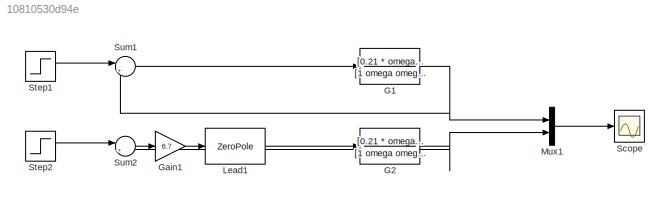
MODEL slx_10810530d94e
KIND model
CONFIG AbsTol = auto
CONFIG EnableMultiTasking = off
CONFIG FixedStep = auto
CONFIG MaxStep = auto
CONFIG MinStep = auto
CONFIG RelTol = 1e-5
CONFIG SampleTimeConstraint = Unconstrained
CONFIG SolverName = VariableStepAuto
CONFIG StartTime = 0.0
CONFIG StopTime = 10.0
BLOCK [TransferFcn] G1
  Denominator = [1 omega omega^2 0 0]
  Numerator = [0.21 * omega^2]
BLOCK [TransferFcn] G2
  Denominator = [1 omega omega^2 0 0]
  Numerator = [0.21 * omega^2]
BLOCK [Gain] Gain1
  Gain = 6.7
BLOCK [ZeroPole] Lead1
  ContinuousStateAttributes = 'Lead'
  Poles = [-1.8]
  Zeros = [-0.015]
BLOCK [Mux] Mux1
  DisplayOption = bar
  Inputs = 2
BLOCK [Scope] Scope
  Floating = off
  NumInputPorts = 1
  ScopeSpecificationString = Simulink.scopes.TimeScopeBlockCfg('CurrentConfiguration', extmgr.ConfigurationSet(extmgr.Configuration('Core','General UI',true),extmgr.Configuration('Core','Source UI',true),extmgr.Configuration('Sources','WiredSimulink',true),extmgr.Configuration('Visuals','Time Domain',true,'SerializedDisplays',{struct('MinYLimReal','-0.25103','MaxYLimReal','2.25924','YLabelReal','','MinYLimMag','0.00000','MaxY...<+1466ch>
BLOCK [Step] Step1
  SampleTime = 0
BLOCK [Step] Step2
  SampleTime = 0
BLOCK [Sum] Sum1
  Inputs = |+-
BLOCK [Sum] Sum2
  Inputs = |+-
NET G1:1 -> Mux1:1, Sum1:2
NET G2:1 -> Mux1:2, Sum2:2
LINE Gain1:1 -> Lead1:1
LINE Lead1:1 -> G2:1
LINE Mux1:1 -> Scope:1
LINE Step1:1 -> Sum1:1
LINE Step2:1 -> Sum2:1
LINE Sum1:1 -> G1:1
LINE Sum2:1 -> Gain1:1
note: NET lines group one-source signal fan-out (src -> all destinations, sorted); 1:1 wires keep LINE
